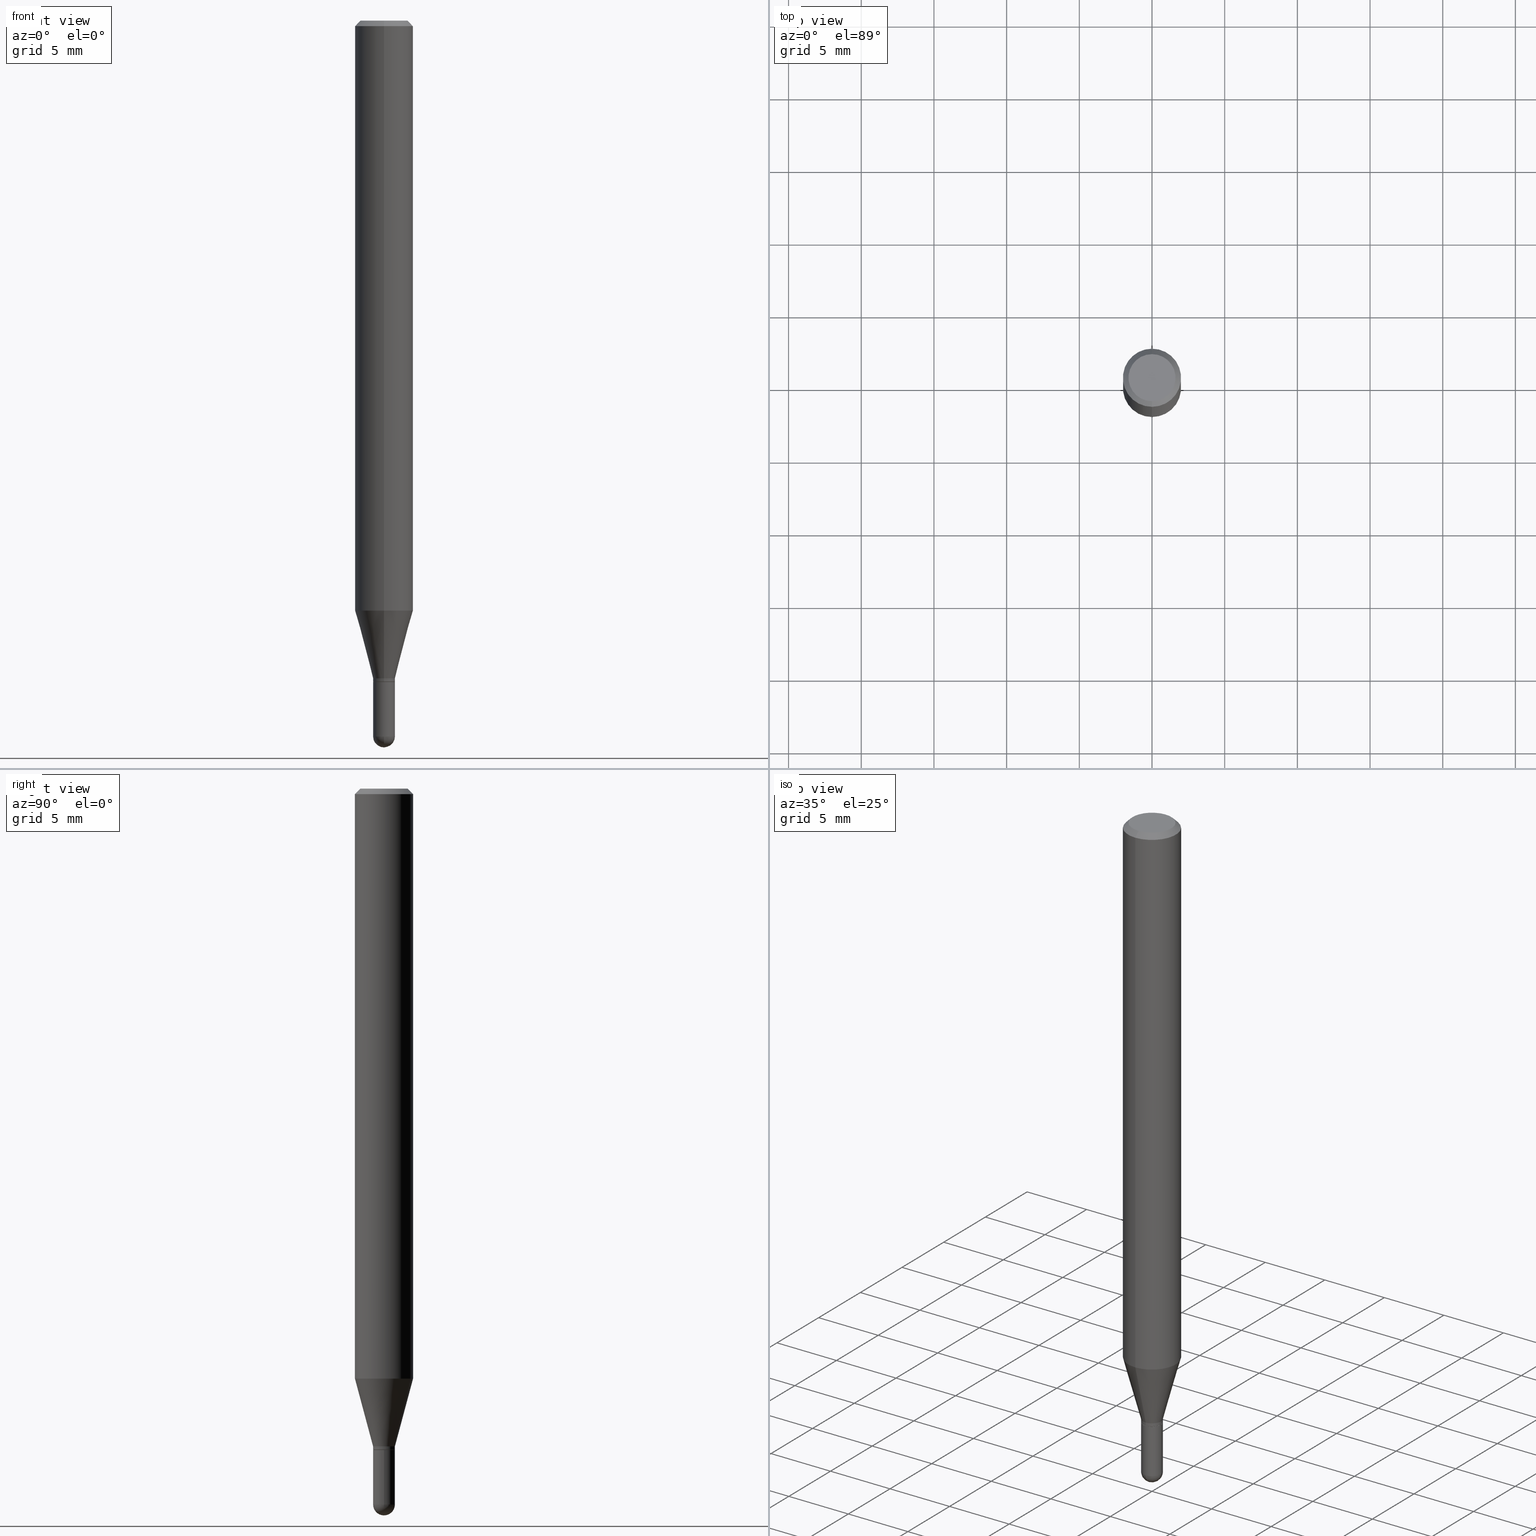
[diagram: canonical four-view strip — front | top / right | iso, engineering-drawing reading convention]
A machine part, canonical four-view strip (front | top / right | iso — engineering-drawing reading convention). The complete STEP part file that produces these views, byte-faithful:
ISO-10303-21;
HEADER;
FILE_DESCRIPTION (( 'STEP AP203' ),
    '1' );
FILE_NAME ('02058.STEP',
    '2024-03-07T20:02:41',
    ( '' ),
    ( '' ),
    'SwSTEP 2.0',
    'SolidWorks 2023',
    '' );
FILE_SCHEMA (( 'CONFIG_CONTROL_DESIGN' ));
ENDSEC;

DATA;
#1 = AXIS2_PLACEMENT_3D ( 'NONE', #234, #21, #60 ) ;
#2 = ADVANCED_FACE ( 'NONE', ( #461 ), #429, .T. ) ;
#3 = DATE_AND_TIME ( #253, #244 ) ;
#4 = LINE ( 'NONE', #164, #89 ) ;
#5 = PLANE ( 'NONE',  #409 ) ;
#6 = CONICAL_SURFACE ( 'NONE', #136, 0.02904999999999999943, 0.7853981633969275844 ) ;
#7 = AXIS2_PLACEMENT_3D ( 'NONE', #56, #384, #421 ) ;
#8 = CARTESIAN_POINT ( 'NONE',  ( 0.000000000000000000, 0.000000000000000000, 0.000000000000000000 ) ) ;
#9 = CARTESIAN_POINT ( 'NONE',  ( -5.749249820364769586E-45, 8.208710176308107801E-31, 2.351024272549896843E-16 ) ) ;
#10 = DIRECTION ( 'NONE',  ( 2.438088387897960049E-29, -3.491481338843145188E-15, -1.000000000000000000 ) ) ;
#11 = DIRECTION ( 'NONE',  ( -2.445423421396322827E-29, 3.491546332443868579E-15, 1.000000000000000000 ) ) ;
#12 = FACE_OUTER_BOUND ( 'NONE', #161, .T. ) ;
#13 = DATE_TIME_ROLE ( 'creation_date' ) ;
#14 = ADVANCED_FACE ( 'NONE', ( #505 ), #281, .T. ) ;
#15 = AXIS2_PLACEMENT_3D ( 'NONE', #105, #259, #55 ) ;
#16 = CARTESIAN_POINT ( 'NONE',  ( 4.741641741752670047E-29, -6.769807741949916508E-15, -1.938949999999999729 ) ) ;
#17 = VECTOR ( 'NONE', #135, 39.37007874015748143 ) ;
#18 = CYLINDRICAL_SURFACE ( 'NONE', #7, 0.07875000000000000056 ) ;
#19 = APPROVAL_STATUS ( 'not_yet_approved' ) ;
#20 = CARTESIAN_POINT ( 'NONE',  ( 5.595524044111175545E-16, 0.07874999999999438005, -1.597883100267613266 ) ) ;
#21 = DIRECTION ( 'NONE',  ( -2.445468806185136597E-29, 3.491481338843145583E-15, 1.000000000000000000 ) ) ;
#22 = APPLICATION_CONTEXT ( 'configuration controlled 3d designs of mechanical parts and assemblies' ) ;
#23 = DIRECTION ( 'NONE',  ( -2.445468806185136597E-29, 3.491481338843145583E-15, 1.000000000000000000 ) ) ;
#24 =( NAMED_UNIT ( * ) SI_UNIT ( $, .STERADIAN. ) SOLID_ANGLE_UNIT ( ) );
#25 = EDGE_CURVE ( 'NONE', #191, #502, #303, .T. ) ;
#26 = AXIS2_PLACEMENT_3D ( 'NONE', #415, #370, #167 ) ;
#27 = ORIENTED_EDGE ( 'NONE', *, *, #142, .T. ) ;
#28 = CC_DESIGN_APPROVAL ( #402, ( #431 ) ) ;
#29 = ORIENTED_EDGE ( 'NONE', *, *, #395, .T. ) ;
#30 = FACE_OUTER_BOUND ( 'NONE', #392, .T. ) ;
#31 = ORIENTED_EDGE ( 'NONE', *, *, #133, .T. ) ;
#32 = ORIENTED_EDGE ( 'NONE', *, *, #257, .T. ) ;
#33 = ADVANCED_FACE ( 'NONE', ( #342 ), #6, .T. ) ;
#34 = DIRECTION ( 'NONE',  ( -2.445468806185136597E-29, 3.491481338843145583E-15, 1.000000000000000000 ) ) ;
#35 = ORIENTED_EDGE ( 'NONE', *, *, #142, .F. ) ;
#36 = ORIENTED_EDGE ( 'NONE', *, *, #475, .T. ) ;
#37 = ORIENTED_EDGE ( 'NONE', *, *, #67, .F. ) ;
#38 = AXIS2_PLACEMENT_3D ( 'NONE', #412, #177, #181 ) ;
#39 = EDGE_LOOP ( 'NONE', ( #372, #36 ) ) ;
#40 = VERTEX_POINT ( 'NONE', #255 ) ;
#41 = CARTESIAN_POINT ( 'NONE',  ( 4.380486974747232827E-29, -6.254406945306701583E-15, -1.791300000000000114 ) ) ;
#42 = EDGE_CURVE ( 'NONE', #470, #401, #445, .T. ) ;
#43 = ORIENTED_EDGE ( 'NONE', *, *, #475, .F. ) ;
#44 = DIRECTION ( 'NONE',  ( -2.445423421396322827E-29, 3.491546332443868579E-15, 1.000000000000000000 ) ) ;
#45 = AXIS2_PLACEMENT_3D ( 'NONE', #336, #129, #292 ) ;
#46 = CONICAL_SURFACE ( 'NONE', #151, 0.02955000000000019764, 0.2617993877991505736 ) ;
#47 = LOCAL_TIME ( 15, 2, 41.00000000000000000, #184 ) ;
#48 = CARTESIAN_POINT ( 'NONE',  ( 2.063465471256760300E-16, 0.02954999999999315119, -1.938949999999999729 ) ) ;
#49 = DIRECTION ( 'NONE',  ( -6.982962677686264344E-15, -1.000000000000000000, 3.491546332443867790E-15 ) ) ;
#50 = APPLICATION_PROTOCOL_DEFINITION ( 'international standard', 'config_control_design', 1994, #22 ) ;
#51 = SHAPE_DEFINITION_REPRESENTATION ( #206, #84 ) ;
#52 = EDGE_CURVE ( 'NONE', #320, #435, #437, .T. ) ;
#53 = CARTESIAN_POINT ( 'NONE',  ( 4.741641741752670047E-29, -6.769807741949916508E-15, -1.938949999999999729 ) ) ;
#54 = CARTESIAN_POINT ( 'NONE',  ( 2.063465471256729731E-16, 0.02954999999999374793, -1.791300000000000114 ) ) ;
#55 = DIRECTION ( 'NONE',  ( -6.982962677686266711E-15, -1.000000000000000000, 0.000000000000000000 ) ) ;
#56 = CARTESIAN_POINT ( 'NONE',  ( 0.000000000000000000, 0.000000000000000000, 0.000000000000000000 ) ) ;
#57 = AXIS2_PLACEMENT_3D ( 'NONE', #77, #81, #216 ) ;
#58 = FACE_OUTER_BOUND ( 'NONE', #125, .T. ) ;
#59 = FACE_OUTER_BOUND ( 'NONE', #504, .T. ) ;
#60 = DIRECTION ( 'NONE',  ( 1.000000000000000000, -6.982962677686261977E-15, 0.000000000000000000 ) ) ;
#61 = CC_DESIGN_PERSON_AND_ORGANIZATION_ASSIGNMENT ( #447, #95, ( #431 ) ) ;
#62 =( CONVERSION_BASED_UNIT ( 'INCH', #146 ) LENGTH_UNIT ( ) NAMED_UNIT ( #286 ) );
#63 = EDGE_CURVE ( 'NONE', #425, #501, #314, .T. ) ;
#64 = DIRECTION ( 'NONE',  ( -1.000000000000000000, 6.982962677686265922E-15, -4.876176775795935793E-29 ) ) ;
#65 = CALENDAR_DATE ( 2024, 7, 3 ) ;
#66 = CARTESIAN_POINT ( 'NONE',  ( 0.000000000000000000, 0.000000000000000000, 0.000000000000000000 ) ) ;
#67 = EDGE_CURVE ( 'NONE', #502, #401, #263, .T. ) ;
#68 = ORIENTED_EDGE ( 'NONE', *, *, #291, .F. ) ;
#69 = AXIS2_PLACEMENT_3D ( 'NONE', #179, #448, #97 ) ;
#70 = VECTOR ( 'NONE', #454, 39.37007874015748143 ) ;
#71 = ORIENTED_EDGE ( 'NONE', *, *, #25, .T. ) ;
#72 = ORIENTED_EDGE ( 'NONE', *, *, #360, .F. ) ;
#73 = ORIENTED_EDGE ( 'NONE', *, *, #236, .F. ) ;
#74 = CARTESIAN_POINT ( 'NONE',  ( 2.099653784171090371E-16, 0.02954999999999992355, -1.031751941237160473E-16 ) ) ;
#75 = ADVANCED_FACE ( 'NONE', ( #261 ), #258, .F. ) ;
#76 = ORIENTED_EDGE ( 'NONE', *, *, #67, .T. ) ;
#77 = CARTESIAN_POINT ( 'NONE',  ( 4.380486974747233388E-29, -6.254406945306702372E-15, -1.791300000000000336 ) ) ;
#78 = ORIENTED_EDGE ( 'NONE', *, *, #42, .F. ) ;
#79 = ORIENTED_EDGE ( 'NONE', *, *, #369, .T. ) ;
#80 = CIRCLE ( 'NONE', #26, 0.07875000000000000056 ) ;
#81 = DIRECTION ( 'NONE',  ( -2.445423421396322827E-29, 3.491546332443868579E-15, 1.000000000000000000 ) ) ;
#82 = CARTESIAN_POINT ( 'NONE',  ( 5.499083108677937401E-16, 0.07874999999999994504, -0.01500000000000004108 ) ) ;
#83 = CC_DESIGN_APPROVAL ( #449, ( #453 ) ) ;
#84 = ADVANCED_BREP_SHAPE_REPRESENTATION ( '02058', ( #130, #128, #460 ), #343 ) ;
#85 = ORIENTED_EDGE ( 'NONE', *, *, #187, .T. ) ;
#86 = CARTESIAN_POINT ( 'NONE',  ( 5.595524044110787031E-16, 0.07875000000000000056, -2.749592736799546417E-16 ) ) ;
#87 = CARTESIAN_POINT ( 'NONE',  ( 0.000000000000000000, 0.000000000000000000, 0.000000000000000000 ) ) ;
#88 = DIRECTION ( 'NONE',  ( -2.445468806185136877E-29, 3.491481338843145188E-15, 1.000000000000000000 ) ) ;
#89 = VECTOR ( 'NONE', #287, 39.37007874015748143 ) ;
#90 = APPLICATION_PROTOCOL_DEFINITION ( 'international standard', 'config_control_design', 1994, #508 ) ;
#91 = EDGE_CURVE ( 'NONE', #401, #502, #80, .T. ) ;
#92 = CIRCLE ( 'NONE', #356, 0.02954999999999999988 ) ;
#93 = DIRECTION ( 'NONE',  ( -6.982962677686264344E-15, -1.000000000000000000, 3.491546332443867790E-15 ) ) ;
#94 = DIRECTION ( 'NONE',  ( -4.937700262161976356E-15, -0.7071067811861768693, 0.7071067811869181652 ) ) ;
#95 = PERSON_AND_ORGANIZATION_ROLE ( 'creator' ) ;
#96 = DATE_AND_TIME ( #254, #119 ) ;
#97 = DIRECTION ( 'NONE',  ( -6.982962677686264344E-15, -1.000000000000000000, 3.469013325287953293E-15 ) ) ;
#98 = DIRECTION ( 'NONE',  ( -6.982962677686265922E-15, -1.000000000000000000, 0.000000000000000000 ) ) ;
#99 = CARTESIAN_POINT ( 'NONE',  ( -2.028550657867422299E-16, -0.02905000000000625138, -1.791300000000000336 ) ) ;
#100 = DIRECTION ( 'NONE',  ( -2.445423421396322827E-29, 3.491546332443868579E-15, 1.000000000000000000 ) ) ;
#101 = CIRCLE ( 'NONE', #490, 0.02954999999999964946 ) ;
#102 = CIRCLE ( 'NONE', #277, 0.02954999999999964946 ) ;
#103 = EDGE_CURVE ( 'NONE', #470, #191, #288, .T. ) ;
#104 = CARTESIAN_POINT ( 'NONE',  ( -2.099653784170616315E-16, -0.02955000000000669938, -1.938949999999999729 ) ) ;
#105 = CARTESIAN_POINT ( 'NONE',  ( 4.380486974747233388E-29, -6.254406945306702372E-15, -1.791300000000000336 ) ) ;
#106 = PERSON_AND_ORGANIZATION_ROLE ( 'creator' ) ;
#107 = CARTESIAN_POINT ( 'NONE',  ( 3.668135132094426700E-31, -5.237319498665721788E-17, -0.01499999999999976526 ) ) ;
#108 = DIRECTION ( 'NONE',  ( -2.445423421396323107E-29, 3.491546332443868973E-15, 1.000000000000000000 ) ) ;
#109 = EDGE_CURVE ( 'NONE', #434, #117, #101, .T. ) ;
#110 = AXIS2_PLACEMENT_3D ( 'NONE', #120, #34, #198 ) ;
#111 = EDGE_LOOP ( 'NONE', ( #76, #31, #406, #112 ) ) ;
#112 = ORIENTED_EDGE ( 'NONE', *, *, #404, .F. ) ;
#113 = FACE_OUTER_BOUND ( 'NONE', #464, .T. ) ;
#114 = ADVANCED_FACE ( 'NONE', ( #58 ), #334, .T. ) ;
#115 = VECTOR ( 'NONE', #249, 39.37007874015748143 ) ;
#116 = CIRCLE ( 'NONE', #211, 0.02954999999999999988 ) ;
#117 = VERTEX_POINT ( 'NONE', #219 ) ;
#118 = EDGE_CURVE ( 'NONE', #435, #320, #325, .T. ) ;
#119 = LOCAL_TIME ( 15, 2, 41.00000000000000000, #295 ) ;
#120 = CARTESIAN_POINT ( 'NONE',  ( 0.000000000000000000, 0.000000000000000000, 0.000000000000000000 ) ) ;
#121 = ORIENTED_EDGE ( 'NONE', *, *, #124, .F. ) ;
#122 = ORIENTED_EDGE ( 'NONE', *, *, #257, .F. ) ;
#123 = CC_DESIGN_PERSON_AND_ORGANIZATION_ASSIGNMENT ( #376, #411, ( #322 ) ) ;
#124 = EDGE_CURVE ( 'NONE', #242, #117, #4, .T. ) ;
#125 = EDGE_LOOP ( 'NONE', ( #121, #85, #509, #68 ) ) ;
#126 = FACE_OUTER_BOUND ( 'NONE', #111, .T. ) ;
#127 = CIRCLE ( 'NONE', #237, 0.02954999999999999988 ) ;
#128 = MANIFOLD_SOLID_BREP ( 'Body-Move/Copy2[2]', #418 ) ;
#129 = DIRECTION ( 'NONE',  ( -2.445423421396322827E-29, 3.491546332443868579E-15, 1.000000000000000000 ) ) ;
#130 = MANIFOLD_SOLID_BREP ( 'Body-Move/Copy2[1]', #346 ) ;
#131 = FACE_OUTER_BOUND ( 'NONE', #240, .T. ) ;
#132 = DIRECTION ( 'NONE',  ( -1.807323732225332111E-15, -0.2588190451025184635, 0.9659258262890689783 ) ) ;
#133 = EDGE_CURVE ( 'NONE', #401, #512, #375, .T. ) ;
#134 = DIRECTION ( 'NONE',  ( 2.445423421396322827E-29, -3.491546332443868579E-15, -1.000000000000000000 ) ) ;
#135 = DIRECTION ( 'NONE',  ( -2.445423421396323107E-29, 3.491546332443868973E-15, 1.000000000000000000 ) ) ;
#136 = AXIS2_PLACEMENT_3D ( 'NONE', #478, #44, #377 ) ;
#137 = CONICAL_SURFACE ( 'NONE', #202, 0.07875000000000000056, 0.7853981633974483900 ) ;
#138 = DIRECTION ( 'NONE',  ( 1.000000000000000000, -6.982962677686261977E-15, 0.000000000000000000 ) ) ;
#139 = DIRECTION ( 'NONE',  ( -2.445423421396322827E-29, 3.491546332443868579E-15, 1.000000000000000000 ) ) ;
#140 = FACE_OUTER_BOUND ( 'NONE', #39, .T. ) ;
#141 = DIRECTION ( 'NONE',  ( -1.000000000000000000, 6.982962677686265922E-15, -4.883557194083112340E-29 ) ) ;
#142 = EDGE_CURVE ( 'NONE', #320, #512, #474, .T. ) ;
#143 = CYLINDRICAL_SURFACE ( 'NONE', #307, 0.02954999999999992355 ) ;
#144 = APPROVAL_STATUS ( 'not_yet_approved' ) ;
#145 = CIRCLE ( 'NONE', #428, 0.02955000000000019764 ) ;
#146 = LENGTH_MEASURE_WITH_UNIT ( LENGTH_MEASURE( 0.02539999999999999897 ), #227 );
#147 = CARTESIAN_POINT ( 'NONE',  ( 0.02954999999999999988, -2.063465471256291914E-16, 1.440910237247699070E-30 ) ) ;
#148 = CALENDAR_DATE ( 2024, 7, 3 ) ;
#149 = CARTESIAN_POINT ( 'NONE',  ( -5.499083108677933457E-16, -0.07875000000000000056, 2.749592736799546417E-16 ) ) ;
#150 = AXIS2_PLACEMENT_3D ( 'NONE', #430, #203, #297 ) ;
#151 = AXIS2_PLACEMENT_3D ( 'NONE', #386, #302, #225 ) ;
#152 = PERSON ( 'UNSPECIFIED', 'UNSPECIFIED', 'UNSPECIFIED', ('UNSPECIFIED'), ('UNSPECIFIED'), ('UNSPECIFIED') ) ;
#153 = ORIENTED_EDGE ( 'NONE', *, *, #103, .F. ) ;
#154 = ORIENTED_EDGE ( 'NONE', *, *, #241, .T. ) ;
#155 = VECTOR ( 'NONE', #169, 39.37007874015748143 ) ;
#156 = CARTESIAN_POINT ( 'NONE',  ( 4.451638707024993845E-16, 0.06375000000000000111, -1.050348650658017743E-16 ) ) ;
#157 = AXIS2_PLACEMENT_3D ( 'NONE', #319, #462, #398 ) ;
#158 = ORIENTED_EDGE ( 'NONE', *, *, #390, .T. ) ;
#159 = ORIENTED_EDGE ( 'NONE', *, *, #103, .T. ) ;
#160 = DIRECTION ( 'NONE',  ( -2.445423421396323107E-29, 3.491546332443868973E-15, 1.000000000000000000 ) ) ;
#161 = EDGE_LOOP ( 'NONE', ( #29, #396, #37, #466 ) ) ;
#162 = EDGE_LOOP ( 'NONE', ( #326, #427, #368, #407 ) ) ;
#163 = ADVANCED_FACE ( 'NONE', ( #213 ), #506, .T. ) ;
#164 = CARTESIAN_POINT ( 'NONE',  ( 2.064126647383528571E-16, 0.02904999999999374402, -1.791300000000000336 ) ) ;
#165 = PLANE ( 'NONE',  #444 ) ;
#166 = EDGE_LOOP ( 'NONE', ( #321, #469, #32, #153 ) ) ;
#167 = DIRECTION ( 'NONE',  ( -6.982962677686264344E-15, -1.000000000000000000, 3.469013325287953293E-15 ) ) ;
#168 = AXIS2_PLACEMENT_3D ( 'NONE', #331, #471, #439 ) ;
#169 = DIRECTION ( 'NONE',  ( 4.937700262164548042E-15, 0.7071067811865451302, -0.7071067811865499042 ) ) ;
#170 = LOCAL_TIME ( 15, 2, 41.00000000000000000, #408 ) ;
#171 = DIRECTION ( 'NONE',  ( 1.000000000000000000, -6.982962677686261977E-15, 0.000000000000000000 ) ) ;
#172 = EDGE_CURVE ( 'NONE', #512, #361, #296, .T. ) ;
#173 = ADVANCED_FACE ( 'NONE', ( #268 ), #143, .T. ) ;
#174 = DIRECTION ( 'NONE',  ( -2.445423421396322827E-29, 3.491546332443868579E-15, 1.000000000000000000 ) ) ;
#175 = COORDINATED_UNIVERSAL_TIME_OFFSET ( 5, 0, .BEHIND. ) ;
#176 = LINE ( 'NONE', #149, #491 ) ;
#177 = DIRECTION ( 'NONE',  ( -1.000000000000000000, 6.982962677686265922E-15, -4.883557194083112340E-29 ) ) ;
#178 = CARTESIAN_POINT ( 'NONE',  ( 4.739114725368145792E-29, -6.773426573241397832E-15, -1.938950000000000173 ) ) ;
#179 = CARTESIAN_POINT ( 'NONE',  ( 3.907500758047788968E-29, -5.579082878413422637E-15, -1.597883100267613043 ) ) ;
#180 = DIRECTION ( 'NONE',  ( -2.445468806185136877E-29, 3.491481338843145188E-15, 1.000000000000000000 ) ) ;
#181 = DIRECTION ( 'NONE',  ( 6.982962677686265922E-15, 1.000000000000000000, 0.000000000000000000 ) ) ;
#182 = DIRECTION ( 'NONE',  ( 6.982962677686265922E-15, 1.000000000000000000, 0.000000000000000000 ) ) ;
#183 = DIRECTION ( 'NONE',  ( -6.982962677686264344E-15, -1.000000000000000000, 3.496114991891765576E-15 ) ) ;
#184 = COORDINATED_UNIVERSAL_TIME_OFFSET ( 5, 0, .BEHIND. ) ;
#185 = DIRECTION ( 'NONE',  ( -2.445468806185136597E-29, 3.491481338843145583E-15, 1.000000000000000000 ) ) ;
#186 = FACE_OUTER_BOUND ( 'NONE', #357, .T. ) ;
#187 = EDGE_CURVE ( 'NONE', #242, #399, #305, .T. ) ;
#188 = DATE_AND_TIME ( #65, #349 ) ;
#189 = VECTOR ( 'NONE', #371, 39.37007874015748143 ) ;
#190 = DESIGN_CONTEXT ( 'detailed design', #22, 'design' ) ;
#191 = VERTEX_POINT ( 'NONE', #416 ) ;
#192 = ORIENTED_EDGE ( 'NONE', *, *, #194, .F. ) ;
#193 = ORIENTED_EDGE ( 'NONE', *, *, #467, .T. ) ;
#194 = EDGE_CURVE ( 'NONE', #399, #434, #420, .T. ) ;
#195 = ORIENTED_EDGE ( 'NONE', *, *, #241, .F. ) ;
#196 = ORIENTED_EDGE ( 'NONE', *, *, #118, .T. ) ;
#197 = CARTESIAN_POINT ( 'NONE',  ( 4.356521825217549114E-29, -6.220189791248753250E-15, -1.781500000000000083 ) ) ;
#198 = DIRECTION ( 'NONE',  ( 1.000000000000000000, -6.982962677686266711E-15, 4.876176775795935793E-29 ) ) ;
#199 = ORIENTED_EDGE ( 'NONE', *, *, #187, .F. ) ;
#200 = DIRECTION ( 'NONE',  ( 2.445423421396322267E-29, -3.491546332443868973E-15, -1.000000000000000000 ) ) ;
#201 = ADVANCED_FACE ( 'NONE', ( #59 ), #345, .T. ) ;
#202 = AXIS2_PLACEMENT_3D ( 'NONE', #107, #352, #264 ) ;
#203 = DIRECTION ( 'NONE',  ( -2.445423421396322827E-29, 3.491546332443868579E-15, 1.000000000000000000 ) ) ;
#204 = DIRECTION ( 'NONE',  ( -1.000000000000000000, 7.105427357601001070E-15, -4.926315508542082329E-29 ) ) ;
#205 = ORIENTED_EDGE ( 'NONE', *, *, #52, .F. ) ;
#206 = PRODUCT_DEFINITION_SHAPE ( 'NONE', 'NONE',  #431 ) ;
#207 = DIRECTION ( 'NONE',  ( -2.445423421396322267E-29, 3.491546332443868973E-15, 1.000000000000000000 ) ) ;
#208 = DIRECTION ( 'NONE',  ( -2.445423421396322827E-29, 3.491546332443868579E-15, 1.000000000000000000 ) ) ;
#209 = EDGE_LOOP ( 'NONE', ( #245, #510, #397, #122 ) ) ;
#210 = VECTOR ( 'NONE', #132, 39.37007874015748854 ) ;
#211 = AXIS2_PLACEMENT_3D ( 'NONE', #212, #374, #171 ) ;
#212 = CARTESIAN_POINT ( 'NONE',  ( 4.380568272519435501E-29, -6.254290522269726388E-15, -1.791300000000000114 ) ) ;
#213 = FACE_OUTER_BOUND ( 'NONE', #503, .T. ) ;
#214 = CALENDAR_DATE ( 2024, 7, 3 ) ;
#215 = ADVANCED_FACE ( 'NONE', ( #140 ), #5, .F. ) ;
#216 = DIRECTION ( 'NONE',  ( -6.982962677686266711E-15, -1.000000000000000000, 0.000000000000000000 ) ) ;
#217 = MECHANICAL_CONTEXT ( 'NONE', #508, 'mechanical' ) ;
#218 = DIRECTION ( 'NONE',  ( -2.445468806185136597E-29, 3.491481338843145583E-15, 1.000000000000000000 ) ) ;
#219 = CARTESIAN_POINT ( 'NONE',  ( 2.099653784171501564E-16, 0.02954999999999330038, -1.790800000000000169 ) ) ;
#220 = ADVANCED_FACE ( 'NONE', ( #492 ), #18, .T. ) ;
#221 = DIRECTION ( 'NONE',  ( -6.982962677686266711E-15, -1.000000000000000000, 0.000000000000000000 ) ) ;
#222 = AXIS2_PLACEMENT_3D ( 'NONE', #53, #218, #138 ) ;
#223 = AXIS2_PLACEMENT_3D ( 'NONE', #197, #400, #359 ) ;
#224 = SECURITY_CLASSIFICATION ( '', '', #232 ) ;
#225 = DIRECTION ( 'NONE',  ( -6.982962677686265133E-15, -1.000000000000000000, 0.000000000000000000 ) ) ;
#226 = CARTESIAN_POINT ( 'NONE',  ( 4.356521825217549114E-29, -6.220189791248753250E-15, -1.781500000000000083 ) ) ;
#227 =( LENGTH_UNIT ( ) NAMED_UNIT ( * ) SI_UNIT ( $, .METRE. ) );
#228 = DIRECTION ( 'NONE',  ( -2.445423421396322827E-29, 3.491546332443868579E-15, 1.000000000000000000 ) ) ;
#229 = COORDINATED_UNIVERSAL_TIME_OFFSET ( 5, 0, .BEHIND. ) ;
#230 = ADVANCED_FACE ( 'NONE', ( #12 ), #46, .T. ) ;
#231 = AXIS2_PLACEMENT_3D ( 'NONE', #41, #207, #473 ) ;
#232 = SECURITY_CLASSIFICATION_LEVEL ( 'unclassified' ) ;
#233 = AXIS2_PLACEMENT_3D ( 'NONE', #66, #23, #391 ) ;
#234 = CARTESIAN_POINT ( 'NONE',  ( 4.741641741752670047E-29, -6.769807741949916508E-15, -1.938949999999999729 ) ) ;
#235 = CARTESIAN_POINT ( 'NONE',  ( -0.02954999999999999988, -6.302083753692712485E-15, -1.938949999999999729 ) ) ;
#236 = EDGE_CURVE ( 'NONE', #435, #361, #380, .T. ) ;
#237 = AXIS2_PLACEMENT_3D ( 'NONE', #304, #262, #488 ) ;
#238 = ORIENTED_EDGE ( 'NONE', *, *, #91, .F. ) ;
#239 = ORIENTED_EDGE ( 'NONE', *, *, #236, .T. ) ;
#240 = EDGE_LOOP ( 'NONE', ( #283, #158, #275, #440 ) ) ;
#241 = EDGE_CURVE ( 'NONE', #317, #40, #483, .T. ) ;
#242 = VERTEX_POINT ( 'NONE', #344 ) ;
#243 = DIRECTION ( 'NONE',  ( -6.982962677686264344E-15, -1.000000000000000000, 3.491546332443868579E-15 ) ) ;
#244 = LOCAL_TIME ( 15, 2, 41.00000000000000000, #175 ) ;
#245 = ORIENTED_EDGE ( 'NONE', *, *, #109, .T. ) ;
#246 = ORIENTED_EDGE ( 'NONE', *, *, #369, .F. ) ;
#247 = VERTEX_POINT ( 'NONE', #104 ) ;
#248 = CC_DESIGN_PERSON_AND_ORGANIZATION_ASSIGNMENT ( #422, #495, ( #453 ) ) ;
#249 = DIRECTION ( 'NONE',  ( 1.839019923739602287E-15, 0.2588190451025252359, 0.9659258262890670910 ) ) ;
#250 = EDGE_CURVE ( 'NONE', #361, #512, #364, .T. ) ;
#251 = CARTESIAN_POINT ( 'NONE',  ( 4.379264263036535863E-29, -6.252661172140480100E-15, -1.790800000000000169 ) ) ;
#252 = CIRCLE ( 'NONE', #465, 0.02954999999999984722 ) ;
#253 = CALENDAR_DATE ( 2024, 7, 3 ) ;
#254 = CALENDAR_DATE ( 2024, 7, 3 ) ;
#255 = CARTESIAN_POINT ( 'NONE',  ( 0.02954999999999999988, -6.460637069395355998E-15, -1.791300000000000114 ) ) ;
#256 = APPROVAL_DATE_TIME ( #96, #381 ) ;
#257 = EDGE_CURVE ( 'NONE', #434, #191, #378, .T. ) ;
#258 = PLANE ( 'NONE',  #231 ) ;
#259 = DIRECTION ( 'NONE',  ( -2.445423421396322827E-29, 3.491546332443868579E-15, 1.000000000000000000 ) ) ;
#260 = DIRECTION ( 'NONE',  ( -2.445423421396322827E-29, 3.491546332443868579E-15, 1.000000000000000000 ) ) ;
#261 = FACE_OUTER_BOUND ( 'NONE', #274, .T. ) ;
#262 = DIRECTION ( 'NONE',  ( -2.445468806185136597E-29, 3.491481338843145583E-15, 1.000000000000000000 ) ) ;
#263 = CIRCLE ( 'NONE', #69, 0.07875000000000000056 ) ;
#264 = DIRECTION ( 'NONE',  ( 6.982962677686264344E-15, 1.000000000000000000, -3.496114991891765576E-15 ) ) ;
#265 = DIRECTION ( 'NONE',  ( -6.982962677686265922E-15, -1.000000000000000000, 3.491546332443868579E-15 ) ) ;
#266 = APPROVAL_ROLE ( '' ) ;
#267 = CARTESIAN_POINT ( 'NONE',  ( 4.812641836783178866E-29, -6.874790431158471975E-15, -1.968500000000000139 ) ) ;
#268 = FACE_OUTER_BOUND ( 'NONE', #209, .T. ) ;
#269 = CARTESIAN_POINT ( 'NONE',  ( 5.595524044111180475E-16, 0.07874999999999994504, -0.01500000000000004108 ) ) ;
#270 = VECTOR ( 'NONE', #160, 39.37007874015748143 ) ;
#271 = CC_DESIGN_DATE_AND_TIME_ASSIGNMENT ( #188, #353, ( #224 ) ) ;
#272 = CARTESIAN_POINT ( 'NONE',  ( -2.028550657867422299E-16, -0.02905000000000625138, -1.791300000000000336 ) ) ;
#273 = ORIENTED_EDGE ( 'NONE', *, *, #63, .T. ) ;
#274 = EDGE_LOOP ( 'NONE', ( #405, #199 ) ) ;
#275 = ORIENTED_EDGE ( 'NONE', *, *, #467, .F. ) ;
#276 = ORIENTED_EDGE ( 'NONE', *, *, #390, .F. ) ;
#277 = AXIS2_PLACEMENT_3D ( 'NONE', #457, #318, #426 ) ;
#278 = EDGE_LOOP ( 'NONE', ( #273, #79, #72, #195, #328 ) ) ;
#279 = LINE ( 'NONE', #74, #270 ) ;
#280 = EDGE_CURVE ( 'NONE', #317, #425, #127, .T. ) ;
#281 = CYLINDRICAL_SURFACE ( 'NONE', #150, 0.02954999999999992355 ) ;
#282 = ORIENTED_EDGE ( 'NONE', *, *, #124, .T. ) ;
#283 = ORIENTED_EDGE ( 'NONE', *, *, #484, .F. ) ;
#284 = VERTEX_POINT ( 'NONE', #310 ) ;
#285 = CARTESIAN_POINT ( 'NONE',  ( -5.499083108677930499E-16, -0.07875000000000004219, -0.01499999999999948944 ) ) ;
#286 = DIMENSIONAL_EXPONENTS ( 1.000000000000000000, 0.000000000000000000, 0.000000000000000000, 0.000000000000000000, 0.000000000000000000, 0.000000000000000000, 0.000000000000000000 ) ;
#287 = DIRECTION ( 'NONE',  ( 5.024295867785445738E-15, 0.7071067811861817543, 0.7071067811869132802 ) ) ;
#288 = CIRCLE ( 'NONE', #45, 0.02955000000000019764 ) ;
#289 = AXIS2_PLACEMENT_3D ( 'NONE', #442, #208, #243 ) ;
#290 = EDGE_LOOP ( 'NONE', ( #246, #193, #366, #154, #43 ) ) ;
#291 = EDGE_CURVE ( 'NONE', #117, #434, #102, .T. ) ;
#292 = DIRECTION ( 'NONE',  ( -6.982962677686265133E-15, -1.000000000000000000, 0.000000000000000000 ) ) ;
#293 = DIRECTION ( 'NONE',  ( -6.982962677686265133E-15, -1.000000000000000000, 0.000000000000000000 ) ) ;
#294 = CYLINDRICAL_SURFACE ( 'NONE', #289, 0.07875000000000000056 ) ;
#295 = COORDINATED_UNIVERSAL_TIME_OFFSET ( 5, 0, .BEHIND. ) ;
#296 = CIRCLE ( 'NONE', #355, 0.07875000000000000056 ) ;
#297 = DIRECTION ( 'NONE',  ( -6.982962677686265922E-15, -1.000000000000000000, 3.491546332443868579E-15 ) ) ;
#298 = CIRCLE ( 'NONE', #1, 0.02954999999999999988 ) ;
#299 = APPROVAL_ROLE ( '' ) ;
#300 = ADVANCED_FACE ( 'NONE', ( #113 ), #373, .T. ) ;
#301 = CARTESIAN_POINT ( 'NONE',  ( -5.749249820364769586E-45, 8.208710176308107801E-31, 2.351024272549896843E-16 ) ) ;
#302 = DIRECTION ( 'NONE',  ( -2.445423421396322827E-29, 3.491546332443868579E-15, 1.000000000000000000 ) ) ;
#303 = LINE ( 'NONE', #450, #210 ) ;
#304 = CARTESIAN_POINT ( 'NONE',  ( 4.741641741752670047E-29, -6.769807741949916508E-15, -1.938949999999999729 ) ) ;
#305 = CIRCLE ( 'NONE', #507, 0.02904999999999999943 ) ;
#306 = CARTESIAN_POINT ( 'NONE',  ( -5.402642173245076924E-16, -0.07875000000000004219, -0.01499999999999948944 ) ) ;
#307 = AXIS2_PLACEMENT_3D ( 'NONE', #8, #485, #265 ) ;
#308 = CC_DESIGN_PERSON_AND_ORGANIZATION_ASSIGNMENT ( #350, #494, ( #224 ) ) ;
#309 = APPROVAL_ROLE ( '' ) ;
#310 = CARTESIAN_POINT ( 'NONE',  ( -0.02954999999999999988, -6.302083753692712485E-15, -1.791300000000000114 ) ) ;
#311 = PERSON_AND_ORGANIZATION ( #152, #335 ) ;
#312 = CYLINDRICAL_SURFACE ( 'NONE', #233, 0.02954999999999999988 ) ;
#313 = PRODUCT_RELATED_PRODUCT_CATEGORY ( 'detail', '', ( #322 ) ) ;
#314 = CIRCLE ( 'NONE', #222, 0.02954999999999999988 ) ;
#315 = EDGE_CURVE ( 'NONE', #117, #470, #279, .T. ) ;
#316 = CIRCLE ( 'NONE', #168, 0.02954999999999984722 ) ;
#317 = VERTEX_POINT ( 'NONE', #327 ) ;
#318 = DIRECTION ( 'NONE',  ( -2.445423421396322827E-29, 3.491546332443868579E-15, 1.000000000000000000 ) ) ;
#319 = CARTESIAN_POINT ( 'NONE',  ( 4.380568272519435501E-29, -6.254290522269726388E-15, -1.791300000000000114 ) ) ;
#320 = VERTEX_POINT ( 'NONE', #441 ) ;
#321 = ORIENTED_EDGE ( 'NONE', *, *, #315, .F. ) ;
#322 = PRODUCT ( '02058', '02058', '', ( #217 ) ) ;
#323 = CARTESIAN_POINT ( 'NONE',  ( 3.847588914141361851E-16, 0.02954999999999397692, -1.781500000000000083 ) ) ;
#324 = ORIENTED_EDGE ( 'NONE', *, *, #484, .T. ) ;
#325 = CIRCLE ( 'NONE', #385, 0.06375000000000000111 ) ;
#326 = ORIENTED_EDGE ( 'NONE', *, *, #133, .F. ) ;
#327 = CARTESIAN_POINT ( 'NONE',  ( 0.02954999999999999988, -6.718395679235450664E-15, -1.938949999999999729 ) ) ;
#328 = ORIENTED_EDGE ( 'NONE', *, *, #280, .T. ) ;
#329 = DIRECTION ( 'NONE',  ( 6.982962677686265922E-15, 1.000000000000000000, -3.491546332443868973E-15 ) ) ;
#330 = ORIENTED_EDGE ( 'NONE', *, *, #250, .T. ) ;
#331 = CARTESIAN_POINT ( 'NONE',  ( 4.739114725368145792E-29, -6.773426573241397832E-15, -1.938950000000000173 ) ) ;
#332 = ORIENTED_EDGE ( 'NONE', *, *, #109, .F. ) ;
#333 = ADVANCED_FACE ( 'NONE', ( #126 ), #294, .T. ) ;
#334 = CONICAL_SURFACE ( 'NONE', #15, 0.02904999999999999943, 0.7853981633969275844 ) ;
#335 = ORGANIZATION ( 'UNSPECIFIED', 'UNSPECIFIED', '' ) ;
#336 = CARTESIAN_POINT ( 'NONE',  ( 4.356521825217549114E-29, -6.220189791248753250E-15, -1.781500000000000083 ) ) ;
#337 = CARTESIAN_POINT ( 'NONE',  ( -0.02954999999999999988, 2.099653784171096041E-16, -1.453545319170324550E-30 ) ) ;
#338 = APPROVAL_STATUS ( 'not_yet_approved' ) ;
#339 = SPHERICAL_SURFACE ( 'NONE', #38, 0.02954999999999984722 ) ;
#340 = CARTESIAN_POINT ( 'NONE',  ( -2.063465471256286244E-16, -0.02954999999999992355, 1.031751941237160473E-16 ) ) ;
#341 = DIRECTION ( 'NONE',  ( 0.000000000000000000, 0.000000000000000000, 1.000000000000000000 ) ) ;
#342 = FACE_OUTER_BOUND ( 'NONE', #354, .T. ) ;
#343 =( GEOMETRIC_REPRESENTATION_CONTEXT ( 3 ) GLOBAL_UNCERTAINTY_ASSIGNED_CONTEXT ( ( #496 ) ) GLOBAL_UNIT_ASSIGNED_CONTEXT ( ( #62, #456, #24 ) ) REPRESENTATION_CONTEXT ( 'NONE', 'WORKASPACE' ) );
#344 = CARTESIAN_POINT ( 'NONE',  ( 2.081890215777515068E-16, 0.02904999999999374402, -1.791300000000000336 ) ) ;
#345 = SPHERICAL_SURFACE ( 'NONE', #419, 0.02954999999999984722 ) ;
#346 = CLOSED_SHELL ( 'NONE', ( #2, #424, #215, #201, #433 ) ) ;
#347 = DIRECTION ( 'NONE',  ( -6.982962677686264344E-15, -1.000000000000000000, 3.496114991891765576E-15 ) ) ;
#348 = CIRCLE ( 'NONE', #57, 0.02904999999999999943 ) ;
#349 = LOCAL_TIME ( 15, 2, 41.00000000000000000, #229 ) ;
#350 = PERSON_AND_ORGANIZATION ( #152, #335 ) ;
#351 = DIRECTION ( 'NONE',  ( 1.000000000000000000, -6.982962677686261977E-15, 0.000000000000000000 ) ) ;
#352 = DIRECTION ( 'NONE',  ( 2.445423421396322827E-29, -3.491546332443868579E-15, -1.000000000000000000 ) ) ;
#353 = DATE_TIME_ROLE ( 'classification_date' ) ;
#354 = EDGE_LOOP ( 'NONE', ( #358, #282, #332, #192 ) ) ;
#355 = AXIS2_PLACEMENT_3D ( 'NONE', #446, #451, #347 ) ;
#356 = AXIS2_PLACEMENT_3D ( 'NONE', #16, #185, #351 ) ;
#357 = EDGE_LOOP ( 'NONE', ( #362, #239, #330, #35 ) ) ;
#358 = ORIENTED_EDGE ( 'NONE', *, *, #383, .T. ) ;
#359 = DIRECTION ( 'NONE',  ( -6.982962677686265133E-15, -1.000000000000000000, 0.000000000000000000 ) ) ;
#360 = EDGE_CURVE ( 'NONE', #40, #284, #116, .T. ) ;
#361 = VERTEX_POINT ( 'NONE', #285 ) ;
#362 = ORIENTED_EDGE ( 'NONE', *, *, #118, .F. ) ;
#363 = ORIENTED_EDGE ( 'NONE', *, *, #280, .F. ) ;
#364 = CIRCLE ( 'NONE', #499, 0.07875000000000000056 ) ;
#365 = ORIENTED_EDGE ( 'NONE', *, *, #458, .F. ) ;
#366 = ORIENTED_EDGE ( 'NONE', *, *, #458, .T. ) ;
#367 = CC_DESIGN_PERSON_AND_ORGANIZATION_ASSIGNMENT ( #311, #106, ( #453 ) ) ;
#368 = ORIENTED_EDGE ( 'NONE', *, *, #404, .T. ) ;
#369 = EDGE_CURVE ( 'NONE', #501, #284, #432, .T. ) ;
#370 = DIRECTION ( 'NONE',  ( -2.445423421396322827E-29, 3.491546332443868579E-15, 1.000000000000000000 ) ) ;
#371 = DIRECTION ( 'NONE',  ( -2.445423421396323107E-29, 3.491546332443868973E-15, 1.000000000000000000 ) ) ;
#372 = ORIENTED_EDGE ( 'NONE', *, *, #360, .T. ) ;
#373 = CONICAL_SURFACE ( 'NONE', #223, 0.02955000000000019764, 0.2617993877991505736 ) ;
#374 = DIRECTION ( 'NONE',  ( -2.445468806185136597E-29, 3.491481338843145583E-15, 1.000000000000000000 ) ) ;
#375 = LINE ( 'NONE', #86, #189 ) ;
#376 = PERSON_AND_ORGANIZATION ( #152, #335 ) ;
#377 = DIRECTION ( 'NONE',  ( -6.982962677686266711E-15, -1.000000000000000000, 0.000000000000000000 ) ) ;
#378 = LINE ( 'NONE', #340, #17 ) ;
#379 = VECTOR ( 'NONE', #94, 39.37007874015748143 ) ;
#380 = LINE ( 'NONE', #306, #70 ) ;
#381 = APPROVAL ( #144, 'UNSPECIFIED' ) ;
#382 = CARTESIAN_POINT ( 'NONE',  ( 3.668135132094426700E-31, -5.237319498665721788E-17, -0.01499999999999976526 ) ) ;
#383 = EDGE_CURVE ( 'NONE', #399, #242, #348, .T. ) ;
#384 = DIRECTION ( 'NONE',  ( -2.445423421396322827E-29, 3.491546332443868579E-15, 1.000000000000000000 ) ) ;
#385 = AXIS2_PLACEMENT_3D ( 'NONE', #9, #11, #49 ) ;
#386 = CARTESIAN_POINT ( 'NONE',  ( 4.356521825217549114E-29, -6.220189791248753250E-15, -1.781500000000000083 ) ) ;
#387 = CIRCLE ( 'NONE', #157, 0.02954999999999999988 ) ;
#388 = APPROVAL_DATE_TIME ( #459, #449 ) ;
#389 = CARTESIAN_POINT ( 'NONE',  ( -2.063465471255836346E-16, -0.02955000000000600202, -1.790800000000000169 ) ) ;
#390 = EDGE_CURVE ( 'NONE', #463, #247, #252, .T. ) ;
#391 = DIRECTION ( 'NONE',  ( 1.000000000000000000, -6.982962677686266711E-15, 4.876176775795935793E-29 ) ) ;
#392 = EDGE_LOOP ( 'NONE', ( #472, #196 ) ) ;
#393 = AXIS2_PLACEMENT_3D ( 'NONE', #476, #134, #414 ) ;
#394 = VECTOR ( 'NONE', #180, 39.37007874015748143 ) ;
#395 = EDGE_CURVE ( 'NONE', #191, #470, #145, .T. ) ;
#396 = ORIENTED_EDGE ( 'NONE', *, *, #42, .T. ) ;
#397 = ORIENTED_EDGE ( 'NONE', *, *, #395, .F. ) ;
#398 = DIRECTION ( 'NONE',  ( 1.000000000000000000, -6.982962677686261977E-15, 0.000000000000000000 ) ) ;
#399 = VERTEX_POINT ( 'NONE', #272 ) ;
#400 = DIRECTION ( 'NONE',  ( -2.445423421396322827E-29, 3.491546332443868579E-15, 1.000000000000000000 ) ) ;
#401 = VERTEX_POINT ( 'NONE', #20 ) ;
#402 = APPROVAL ( #338, 'UNSPECIFIED' ) ;
#403 = APPROVAL_PERSON_ORGANIZATION ( #477, #402, #299 ) ;
#404 = EDGE_CURVE ( 'NONE', #502, #361, #176, .T. ) ;
#405 = ORIENTED_EDGE ( 'NONE', *, *, #383, .F. ) ;
#406 = ORIENTED_EDGE ( 'NONE', *, *, #250, .F. ) ;
#407 = ORIENTED_EDGE ( 'NONE', *, *, #172, .F. ) ;
#408 = COORDINATED_UNIVERSAL_TIME_OFFSET ( 5, 0, .BEHIND. ) ;
#409 = AXIS2_PLACEMENT_3D ( 'NONE', #54, #10, #64 ) ;
#410 = CC_DESIGN_SECURITY_CLASSIFICATION ( #224, ( #453 ) ) ;
#411 = PERSON_AND_ORGANIZATION_ROLE ( 'design_owner' ) ;
#412 = CARTESIAN_POINT ( 'NONE',  ( 4.739114725368145792E-29, -6.773426573241397832E-15, -1.938950000000000173 ) ) ;
#413 = CARTESIAN_POINT ( 'NONE',  ( 2.099653784171545198E-16, 0.02954999999999397692, -1.781500000000000083 ) ) ;
#414 = DIRECTION ( 'NONE',  ( 6.982962677686264344E-15, 1.000000000000000000, -3.496114991891765576E-15 ) ) ;
#415 = CARTESIAN_POINT ( 'NONE',  ( 3.907500758047788968E-29, -5.579082878413422637E-15, -1.597883100267613043 ) ) ;
#416 = CARTESIAN_POINT ( 'NONE',  ( -2.063465471255869873E-16, -0.02955000000000641489, -1.781500000000000083 ) ) ;
#417 = CC_DESIGN_DATE_AND_TIME_ASSIGNMENT ( #423, #13, ( #431 ) ) ;
#418 = CLOSED_SHELL ( 'NONE', ( #173, #33, #493, #333, #230, #300, #220, #163, #481, #75, #114, #14 ) ) ;
#419 = AXIS2_PLACEMENT_3D ( 'NONE', #178, #141, #182 ) ;
#420 = LINE ( 'NONE', #99, #379 ) ;
#421 = DIRECTION ( 'NONE',  ( -6.982962677686264344E-15, -1.000000000000000000, 3.491546332443868579E-15 ) ) ;
#422 = PERSON_AND_ORGANIZATION ( #152, #335 ) ;
#423 = DATE_AND_TIME ( #214, #170 ) ;
#424 = ADVANCED_FACE ( 'NONE', ( #131 ), #339, .T. ) ;
#425 = VERTEX_POINT ( 'NONE', #48 ) ;
#426 = DIRECTION ( 'NONE',  ( -6.982962677686265922E-15, -1.000000000000000000, 0.000000000000000000 ) ) ;
#427 = ORIENTED_EDGE ( 'NONE', *, *, #91, .T. ) ;
#428 = AXIS2_PLACEMENT_3D ( 'NONE', #226, #260, #293 ) ;
#429 = CYLINDRICAL_SURFACE ( 'NONE', #110, 0.02954999999999999988 ) ;
#430 = CARTESIAN_POINT ( 'NONE',  ( 0.000000000000000000, 0.000000000000000000, 0.000000000000000000 ) ) ;
#431 = PRODUCT_DEFINITION ( 'UNKNOWN', '', #453, #190 ) ;
#432 = LINE ( 'NONE', #337, #438 ) ;
#433 = ADVANCED_FACE ( 'NONE', ( #486 ), #312, .T. ) ;
#434 = VERTEX_POINT ( 'NONE', #389 ) ;
#435 = VERTEX_POINT ( 'NONE', #497 ) ;
#436 = CARTESIAN_POINT ( 'NONE',  ( 4.739114725368145792E-29, -6.773426573241397832E-15, -1.938950000000000173 ) ) ;
#437 = CIRCLE ( 'NONE', #498, 0.06375000000000000111 ) ;
#438 = VECTOR ( 'NONE', #88, 39.37007874015748143 ) ;
#439 = DIRECTION ( 'NONE',  ( 6.982962677686265922E-15, 1.000000000000000000, 0.000000000000000000 ) ) ;
#440 = ORIENTED_EDGE ( 'NONE', *, *, #63, .F. ) ;
#441 = CARTESIAN_POINT ( 'NONE',  ( 4.975360907851465623E-16, 0.06375000000000000111, 1.251634856169306932E-17 ) ) ;
#442 = CARTESIAN_POINT ( 'NONE',  ( 0.000000000000000000, 0.000000000000000000, 0.000000000000000000 ) ) ;
#443 = DIRECTION ( 'NONE',  ( 1.000000000000000000, 0.000000000000000000, 0.000000000000000000 ) ) ;
#444 = AXIS2_PLACEMENT_3D ( 'NONE', #156, #200, #329 ) ;
#445 = LINE ( 'NONE', #413, #115 ) ;
#446 = CARTESIAN_POINT ( 'NONE',  ( 3.668135132094426700E-31, -5.237319498665721788E-17, -0.01499999999999976526 ) ) ;
#447 = PERSON_AND_ORGANIZATION ( #152, #335 ) ;
#448 = DIRECTION ( 'NONE',  ( -2.445423421396322827E-29, 3.491546332443868579E-15, 1.000000000000000000 ) ) ;
#449 = APPROVAL ( #19, 'UNSPECIFIED' ) ;
#450 = CARTESIAN_POINT ( 'NONE',  ( -2.063465471255869873E-16, -0.02955000000000641489, -1.781500000000000083 ) ) ;
#451 = DIRECTION ( 'NONE',  ( -2.445423421396322827E-29, 3.491546332443868579E-15, 1.000000000000000000 ) ) ;
#452 = APPROVAL_PERSON_ORGANIZATION ( #455, #449, #266 ) ;
#453 = PRODUCT_DEFINITION_FORMATION_WITH_SPECIFIED_SOURCE ( 'ANY', '', #322, .NOT_KNOWN. ) ;
#454 = DIRECTION ( 'NONE',  ( -4.851104656540964275E-15, -0.7071067811865500152, -0.7071067811865450192 ) ) ;
#455 = PERSON_AND_ORGANIZATION ( #152, #335 ) ;
#456 =( NAMED_UNIT ( * ) PLANE_ANGLE_UNIT ( ) SI_UNIT ( $, .RADIAN. ) );
#457 = CARTESIAN_POINT ( 'NONE',  ( 4.379264263036535863E-29, -6.252661172140480100E-15, -1.790800000000000169 ) ) ;
#458 = EDGE_CURVE ( 'NONE', #247, #317, #298, .T. ) ;
#459 = DATE_AND_TIME ( #148, #47 ) ;
#460 = AXIS2_PLACEMENT_3D ( 'NONE', #87, #341, #443 ) ;
#461 = FACE_OUTER_BOUND ( 'NONE', #278, .T. ) ;
#462 = DIRECTION ( 'NONE',  ( -2.445468806185136597E-29, 3.491481338843145583E-15, 1.000000000000000000 ) ) ;
#463 = VERTEX_POINT ( 'NONE', #267 ) ;
#464 = EDGE_LOOP ( 'NONE', ( #78, #159, #71, #238 ) ) ;
#465 = AXIS2_PLACEMENT_3D ( 'NONE', #436, #204, #511 ) ;
#466 = ORIENTED_EDGE ( 'NONE', *, *, #25, .F. ) ;
#467 = EDGE_CURVE ( 'NONE', #501, #247, #92, .T. ) ;
#468 = ORIENTED_EDGE ( 'NONE', *, *, #172, .T. ) ;
#469 = ORIENTED_EDGE ( 'NONE', *, *, #291, .T. ) ;
#470 = VERTEX_POINT ( 'NONE', #323 ) ;
#471 = DIRECTION ( 'NONE',  ( 1.000000000000000000, -6.982962677686265922E-15, 4.883557194083112340E-29 ) ) ;
#472 = ORIENTED_EDGE ( 'NONE', *, *, #52, .T. ) ;
#473 = DIRECTION ( 'NONE',  ( -6.982962677686265922E-15, -1.000000000000000000, 3.491546332443868973E-15 ) ) ;
#474 = LINE ( 'NONE', #82, #155 ) ;
#475 = EDGE_CURVE ( 'NONE', #284, #40, #387, .T. ) ;
#476 = CARTESIAN_POINT ( 'NONE',  ( 3.668135132094426700E-31, -5.237319498665721788E-17, -0.01499999999999976526 ) ) ;
#477 = PERSON_AND_ORGANIZATION ( #152, #335 ) ;
#478 = CARTESIAN_POINT ( 'NONE',  ( 4.380486974747233388E-29, -6.254406945306702372E-15, -1.791300000000000336 ) ) ;
#479 = CARTESIAN_POINT ( 'NONE',  ( 4.380486974747233388E-29, -6.254406945306702372E-15, -1.791300000000000336 ) ) ;
#480 = APPROVAL_DATE_TIME ( #3, #402 ) ;
#481 = ADVANCED_FACE ( 'NONE', ( #30 ), #165, .F. ) ;
#482 = APPROVAL_PERSON_ORGANIZATION ( #489, #381, #309 ) ;
#483 = LINE ( 'NONE', #147, #394 ) ;
#484 = EDGE_CURVE ( 'NONE', #463, #425, #316, .T. ) ;
#485 = DIRECTION ( 'NONE',  ( -2.445423421396322827E-29, 3.491546332443868579E-15, 1.000000000000000000 ) ) ;
#486 = FACE_OUTER_BOUND ( 'NONE', #290, .T. ) ;
#487 = CARTESIAN_POINT ( 'NONE',  ( -5.499083108677545929E-16, -0.07875000000000559330, -1.597883100267612599 ) ) ;
#488 = DIRECTION ( 'NONE',  ( 1.000000000000000000, -6.982962677686261977E-15, 0.000000000000000000 ) ) ;
#489 = PERSON_AND_ORGANIZATION ( #152, #335 ) ;
#490 = AXIS2_PLACEMENT_3D ( 'NONE', #251, #139, #98 ) ;
#491 = VECTOR ( 'NONE', #108, 39.37007874015748143 ) ;
#492 = FACE_OUTER_BOUND ( 'NONE', #162, .T. ) ;
#493 = ADVANCED_FACE ( 'NONE', ( #186 ), #137, .T. ) ;
#494 = PERSON_AND_ORGANIZATION_ROLE ( 'classification_officer' ) ;
#495 = PERSON_AND_ORGANIZATION_ROLE ( 'design_supplier' ) ;
#496 = UNCERTAINTY_MEASURE_WITH_UNIT (LENGTH_MEASURE( 1.000000000000000082E-05 ), #62, 'distance_accuracy_value', 'NONE');
#497 = CARTESIAN_POINT ( 'NONE',  ( -4.888104823412213911E-16, -0.06375000000000000111, 4.576885059482862638E-16 ) ) ;
#498 = AXIS2_PLACEMENT_3D ( 'NONE', #301, #174, #93 ) ;
#499 = AXIS2_PLACEMENT_3D ( 'NONE', #382, #100, #183 ) ;
#500 = CC_DESIGN_APPROVAL ( #381, ( #224 ) ) ;
#501 = VERTEX_POINT ( 'NONE', #235 ) ;
#502 = VERTEX_POINT ( 'NONE', #487 ) ;
#503 = EDGE_LOOP ( 'NONE', ( #73, #205, #27, #468 ) ) ;
#504 = EDGE_LOOP ( 'NONE', ( #276, #324, #363, #365 ) ) ;
#505 = FACE_OUTER_BOUND ( 'NONE', #166, .T. ) ;
#506 = CONICAL_SURFACE ( 'NONE', #393, 0.07875000000000000056, 0.7853981633974483900 ) ;
#507 = AXIS2_PLACEMENT_3D ( 'NONE', #479, #228, #221 ) ;
#508 = APPLICATION_CONTEXT ( 'configuration controlled 3d designs of mechanical parts and assemblies' ) ;
#509 = ORIENTED_EDGE ( 'NONE', *, *, #194, .T. ) ;
#510 = ORIENTED_EDGE ( 'NONE', *, *, #315, .T. ) ;
#511 = DIRECTION ( 'NONE',  ( -7.105427357601001070E-15, -1.000000000000000000, 0.000000000000000000 ) ) ;
#512 = VERTEX_POINT ( 'NONE', #269 ) ;
ENDSEC;
END-ISO-10303-21;
